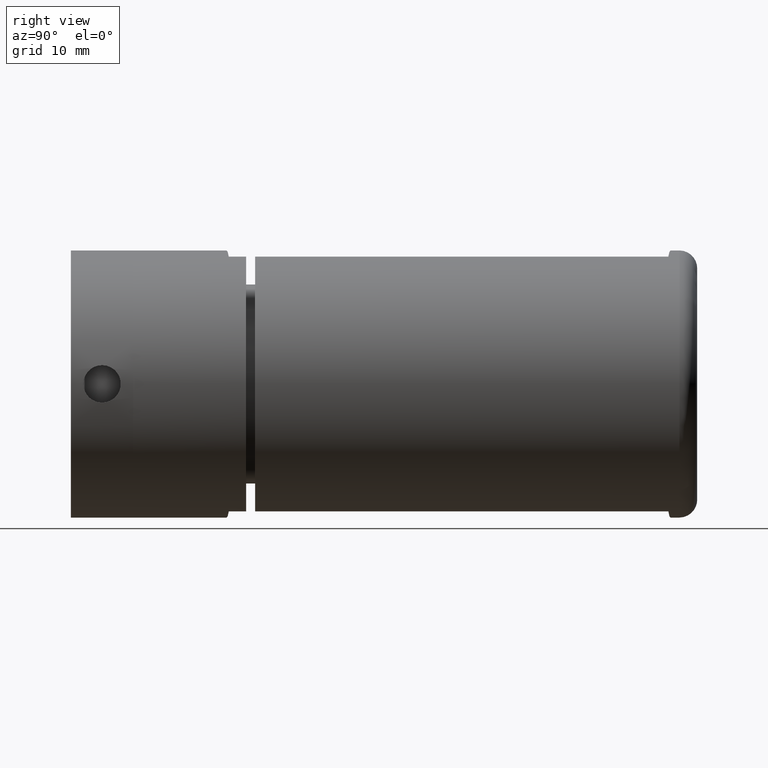
[diagram: clean part render]
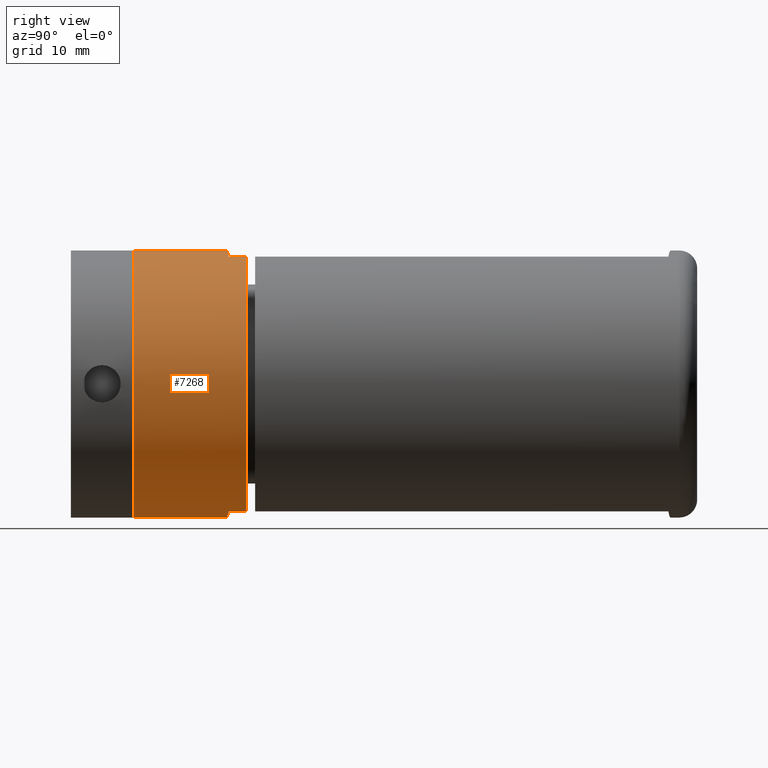
[diagram: same view with one face highlighted and labeled with its STEP entity id]
A machine part, right view. The second image highlights one B-rep face of the part: STEP entity #7268.
In plain terms, the highlighted cylindrical surface (bore or boss wall) has radius 15 mm, axis along (0, 1, -0).
Its self-contained STEP definition (entity closure, byte-faithful):
#22 = VECTOR ( 'NONE', #698, 1000.000000000000000 ) ;
#69 = ORIENTED_EDGE ( 'NONE', *, *, #9501, .T. ) ;
#210 = FACE_OUTER_BOUND ( 'NONE', #3507, .T. ) ;
#216 = CARTESIAN_POINT ( 'NONE',  ( 4.500000000000000000, 1.954164993226297200, -14.30908802125418500 ) ) ;
#388 = CARTESIAN_POINT ( 'NONE',  ( 0.0000000000000000000, 2.189999999999999100, -15.00000000000000000 ) ) ;
#698 = DIRECTION ( 'NONE',  ( -0.0000000000000000000, -1.000000000000000000, -0.0000000000000000000 ) ) ;
#1032 = AXIS2_PLACEMENT_3D ( 'NONE', #4582, #3012, #3187 ) ;
#1124 = CARTESIAN_POINT ( 'NONE',  ( 1.529386172815872400, 2.109848267016525700, 14.99999999999999800 ) ) ;
#1129 = ORIENTED_EDGE ( 'NONE', *, *, #6606, .T. ) ;
#1184 = DIRECTION ( 'NONE',  ( 0.0000000000000000000, 1.000000000000000000, 0.0000000000000000000 ) ) ;
#1568 = VERTEX_POINT ( 'NONE', #4231 ) ;
#1695 = DIRECTION ( 'NONE',  ( 0.0000000000000000000, 0.0000000000000000000, 1.000000000000000000 ) ) ;
#1792 = CARTESIAN_POINT ( 'NONE',  ( 0.0000000000000000000, 2.189999999999999100, -15.00000000000000000 ) ) ;
#1849 = CARTESIAN_POINT ( 'NONE',  ( -1.529386172815872400, 2.109848267016523900, -14.99999999999999800 ) ) ;
#2010 = VECTOR ( 'NONE', #10767, 1000.000000000000000 ) ;
#2296 = VERTEX_POINT ( 'NONE', #16007 ) ;
#2568 = CARTESIAN_POINT ( 'NONE',  ( 4.500000000000000000, 0.0000000000000000000, 14.30908802125418300 ) ) ;
#2775 = CARTESIAN_POINT ( 'NONE',  ( 4.500000000000000000, 12.69000000000000000, 14.30908802125418500 ) ) ;
#2835 = DIRECTION ( 'NONE',  ( -0.0000000000000000000, -1.000000000000000000, -0.0000000000000000000 ) ) ;
#3012 = DIRECTION ( 'NONE',  ( 0.0000000000000000000, 1.000000000000000000, 0.0000000000000000000 ) ) ;
#3050 = EDGE_CURVE ( 'NONE', #15206, #2296, #7877, .T. ) ;
#3187 = DIRECTION ( 'NONE',  ( 0.0000000000000000000, 0.0000000000000000000, 1.000000000000000000 ) ) ;
#3226 = CARTESIAN_POINT ( 'NONE',  ( -4.500000000000000000, 1.954164993226297200, -14.30908802125418900 ) ) ;
#3275 = VERTEX_POINT ( 'NONE', #4320 ) ;
#3507 = EDGE_LOOP ( 'NONE', ( #17135 ) ) ;
#3736 = VECTOR ( 'NONE', #2835, 1000.000000000000000 ) ;
#3784 = AXIS2_PLACEMENT_3D ( 'NONE', #4293, #16293, #1695 ) ;
#3848 = ORIENTED_EDGE ( 'NONE', *, *, #9799, .T. ) ;
#3955 = CARTESIAN_POINT ( 'NONE',  ( 3.041058575645903400, 2.030624873380738800, 14.76790387309894600 ) ) ;
#4148 = LINE ( 'NONE', #2775, #3736 ) ;
#4161 = DIRECTION ( 'NONE',  ( -0.0000000000000000000, -1.000000000000000000, -0.0000000000000000000 ) ) ;
#4231 = CARTESIAN_POINT ( 'NONE',  ( 4.500000000000000000, 1.954164993226297200, 14.30908802125418300 ) ) ;
#4293 = CARTESIAN_POINT ( 'NONE',  ( 0.0000000000000000000, 12.69000000000000000, 0.0000000000000000000 ) ) ;
#4320 = CARTESIAN_POINT ( 'NONE',  ( 0.0000000000000000000, 2.189999999999999100, 15.00000000000000000 ) ) ;
#4476 = ORIENTED_EDGE ( 'NONE', *, *, #17288, .T. ) ;
#4582 = CARTESIAN_POINT ( 'NONE',  ( 0.0000000000000000000, 0.0000000000000000000, 0.0000000000000000000 ) ) ;
#4854 =( BOUNDED_CURVE ( )  B_SPLINE_CURVE ( 3, ( #14428, #10496, #17093, #5102 ),
 .UNSPECIFIED., .F., .F. ) 
 B_SPLINE_CURVE_WITH_KNOTS ( ( 4, 4 ),
 ( 1.266103672779499200, 1.570796326794896600 ),
 .UNSPECIFIED. ) 
 CURVE ( )  GEOMETRIC_REPRESENTATION_ITEM ( )  RATIONAL_B_SPLINE_CURVE ( ( 1.000000000000000000, 0.9922784838777378700, 0.9922784838777378700, 1.000000000000000000 ) ) 
 REPRESENTATION_ITEM ( '' )  );
#5011 = VERTEX_POINT ( 'NONE', #2568 ) ;
#5102 = CARTESIAN_POINT ( 'NONE',  ( 0.0000000000000000000, 2.189999999999999100, 15.00000000000000000 ) ) ;
#5827 = ORIENTED_EDGE ( 'NONE', *, *, #16952, .T. ) ;
#5839 = CARTESIAN_POINT ( 'NONE',  ( 4.500000000000000000, 0.0000000000000000000, -14.30908802125418500 ) ) ;
#5996 = DIRECTION ( 'NONE',  ( 0.0000000000000000000, 0.0000000000000000000, -1.000000000000000000 ) ) ;
#6274 = EDGE_CURVE ( 'NONE', #8397, #8397, #10960, .T. ) ;
#6417 = LINE ( 'NONE', #16132, #2010 ) ;
#6489 = LINE ( 'NONE', #7205, #7562 ) ;
#6606 = EDGE_CURVE ( 'NONE', #2296, #15370, #6489, .T. ) ;
#6944 = CARTESIAN_POINT ( 'NONE',  ( 1.529386172815876200, 2.109848267016525700, -14.99999999999999800 ) ) ;
#6995 = CARTESIAN_POINT ( 'NONE',  ( 3.041058575645907400, 2.030624873380738800, -14.76790387309894600 ) ) ;
#7205 = CARTESIAN_POINT ( 'NONE',  ( -4.500000000000000000, 12.69000000000000000, 14.30908802125418500 ) ) ;
#7241 = CARTESIAN_POINT ( 'NONE',  ( -3.041058575645903400, 2.030624873380737900, -14.76790387309894600 ) ) ;
#7268 = ADVANCED_FACE ( 'NONE', ( #210, #11494 ), #10866, .T. ) ;
#7562 = VECTOR ( 'NONE', #15088, 1000.000000000000000 ) ;
#7867 = CARTESIAN_POINT ( 'NONE',  ( 0.0000000000000000000, 0.0000000000000000000, 0.0000000000000000000 ) ) ;
#7877 = CIRCLE ( 'NONE', #1032, 15.00000000000000000 ) ;
#7893 = CIRCLE ( 'NONE', #14990, 15.00000000000000000 ) ;
#7921 = CARTESIAN_POINT ( 'NONE',  ( 0.0000000000000000000, 2.189999999999999100, 15.00000000000000000 ) ) ;
#7940 = EDGE_CURVE ( 'NONE', #14318, #16964, #8063, .T. ) ;
#7990 = CARTESIAN_POINT ( 'NONE',  ( 4.500000000000000000, 1.954164993226297200, 14.30908802125418300 ) ) ;
#8063 =( BOUNDED_CURVE ( )  B_SPLINE_CURVE ( 3, ( #216, #6995, #6944, #388 ),
 .UNSPECIFIED., .F., .F. ) 
 B_SPLINE_CURVE_WITH_KNOTS ( ( 4, 4 ),
 ( 1.266103672779499000, 1.570796326794896600 ),
 .UNSPECIFIED. ) 
 CURVE ( )  GEOMETRIC_REPRESENTATION_ITEM ( )  RATIONAL_B_SPLINE_CURVE ( ( 1.000000000000000000, 0.9922784838777378700, 0.9922784838777378700, 1.000000000000000000 ) ) 
 REPRESENTATION_ITEM ( '' )  );
#8199 = LINE ( 'NONE', #8782, #22 ) ;
#8397 = VERTEX_POINT ( 'NONE', #10551 ) ;
#8782 = CARTESIAN_POINT ( 'NONE',  ( -4.500000000000000000, 12.69000000000000000, -14.30908802125418500 ) ) ;
#8885 = ORIENTED_EDGE ( 'NONE', *, *, #7940, .T. ) ;
#9393 = ORIENTED_EDGE ( 'NONE', *, *, #3050, .T. ) ;
#9501 = EDGE_CURVE ( 'NONE', #16964, #14845, #14348, .T. ) ;
#9632 = ORIENTED_EDGE ( 'NONE', *, *, #15664, .T. ) ;
#9799 = EDGE_CURVE ( 'NONE', #1568, #5011, #4148, .T. ) ;
#9847 = EDGE_CURVE ( 'NONE', #10513, #14318, #6417, .T. ) ;
#10496 = CARTESIAN_POINT ( 'NONE',  ( -3.041058575645905600, 2.030624873380737500, 14.76790387309894600 ) ) ;
#10513 = VERTEX_POINT ( 'NONE', #5839 ) ;
#10551 = CARTESIAN_POINT ( 'NONE',  ( 0.0000000000000000000, 12.69000000000000000, 15.00000000000000000 ) ) ;
#10767 = DIRECTION ( 'NONE',  ( 0.0000000000000000000, 1.000000000000000000, 0.0000000000000000000 ) ) ;
#10866 = CYLINDRICAL_SURFACE ( 'NONE', #17067, 15.00000000000000000 ) ;
#10960 = CIRCLE ( 'NONE', #3784, 15.00000000000000000 ) ;
#11272 = EDGE_CURVE ( 'NONE', #5011, #10513, #7893, .T. ) ;
#11274 = CARTESIAN_POINT ( 'NONE',  ( -4.500000000000000000, 1.954164993226297200, -14.30908802125418900 ) ) ;
#11385 = CARTESIAN_POINT ( 'NONE',  ( 0.0000000000000000000, 2.189999999999999100, -15.00000000000000000 ) ) ;
#11494 = FACE_OUTER_BOUND ( 'NONE', #13538, .T. ) ;
#11860 = DIRECTION ( 'NONE',  ( 0.0000000000000000000, 0.0000000000000000000, 1.000000000000000000 ) ) ;
#13171 = CARTESIAN_POINT ( 'NONE',  ( 0.0000000000000000000, 12.69000000000000000, 0.0000000000000000000 ) ) ;
#13538 = EDGE_LOOP ( 'NONE', ( #9393, #1129, #4476, #9632, #3848, #14788, #15687, #8885, #69, #5827 ) ) ;
#13748 = CARTESIAN_POINT ( 'NONE',  ( -4.500000000000000000, 1.954164993226297200, 14.30908802125418300 ) ) ;
#14318 = VERTEX_POINT ( 'NONE', #15321 ) ;
#14348 =( BOUNDED_CURVE ( )  B_SPLINE_CURVE ( 3, ( #1792, #1849, #7241, #3226 ),
 .UNSPECIFIED., .F., .F. ) 
 B_SPLINE_CURVE_WITH_KNOTS ( ( 4, 4 ),
 ( 4.712388980384689700, 5.017081634400087300 ),
 .UNSPECIFIED. ) 
 CURVE ( )  GEOMETRIC_REPRESENTATION_ITEM ( )  RATIONAL_B_SPLINE_CURVE ( ( 1.000000000000000000, 0.9922784838777378700, 0.9922784838777378700, 1.000000000000000000 ) ) 
 REPRESENTATION_ITEM ( '' )  );
#14428 = CARTESIAN_POINT ( 'NONE',  ( -4.500000000000000000, 1.954164993226297200, 14.30908802125418300 ) ) ;
#14788 = ORIENTED_EDGE ( 'NONE', *, *, #11272, .T. ) ;
#14845 = VERTEX_POINT ( 'NONE', #11274 ) ;
#14990 = AXIS2_PLACEMENT_3D ( 'NONE', #7867, #1184, #11860 ) ;
#15088 = DIRECTION ( 'NONE',  ( 0.0000000000000000000, 1.000000000000000000, 0.0000000000000000000 ) ) ;
#15206 = VERTEX_POINT ( 'NONE', #15695 ) ;
#15321 = CARTESIAN_POINT ( 'NONE',  ( 4.500000000000000000, 1.954164993226297200, -14.30908802125418500 ) ) ;
#15370 = VERTEX_POINT ( 'NONE', #13748 ) ;
#15664 = EDGE_CURVE ( 'NONE', #3275, #1568, #16716, .T. ) ;
#15687 = ORIENTED_EDGE ( 'NONE', *, *, #9847, .T. ) ;
#15695 = CARTESIAN_POINT ( 'NONE',  ( -4.500000000000000000, 0.0000000000000000000, -14.30908802125418500 ) ) ;
#16007 = CARTESIAN_POINT ( 'NONE',  ( -4.500000000000000000, 0.0000000000000000000, 14.30908802125418300 ) ) ;
#16132 = CARTESIAN_POINT ( 'NONE',  ( 4.500000000000000000, 12.69000000000000000, -14.30908802125418500 ) ) ;
#16293 = DIRECTION ( 'NONE',  ( 0.0000000000000000000, 1.000000000000000000, 0.0000000000000000000 ) ) ;
#16716 =( BOUNDED_CURVE ( )  B_SPLINE_CURVE ( 3, ( #7921, #1124, #3955, #7990 ),
 .UNSPECIFIED., .F., .F. ) 
 B_SPLINE_CURVE_WITH_KNOTS ( ( 4, 4 ),
 ( 4.712388980384689700, 5.017081634400087300 ),
 .UNSPECIFIED. ) 
 CURVE ( )  GEOMETRIC_REPRESENTATION_ITEM ( )  RATIONAL_B_SPLINE_CURVE ( ( 1.000000000000000000, 0.9922784838777378700, 0.9922784838777378700, 1.000000000000000000 ) ) 
 REPRESENTATION_ITEM ( '' )  );
#16952 = EDGE_CURVE ( 'NONE', #14845, #15206, #8199, .T. ) ;
#16964 = VERTEX_POINT ( 'NONE', #11385 ) ;
#17067 = AXIS2_PLACEMENT_3D ( 'NONE', #13171, #4161, #5996 ) ;
#17093 = CARTESIAN_POINT ( 'NONE',  ( -1.529386172815875100, 2.109848267016523900, 14.99999999999999800 ) ) ;
#17135 = ORIENTED_EDGE ( 'NONE', *, *, #6274, .F. ) ;
#17288 = EDGE_CURVE ( 'NONE', #15370, #3275, #4854, .T. ) ;